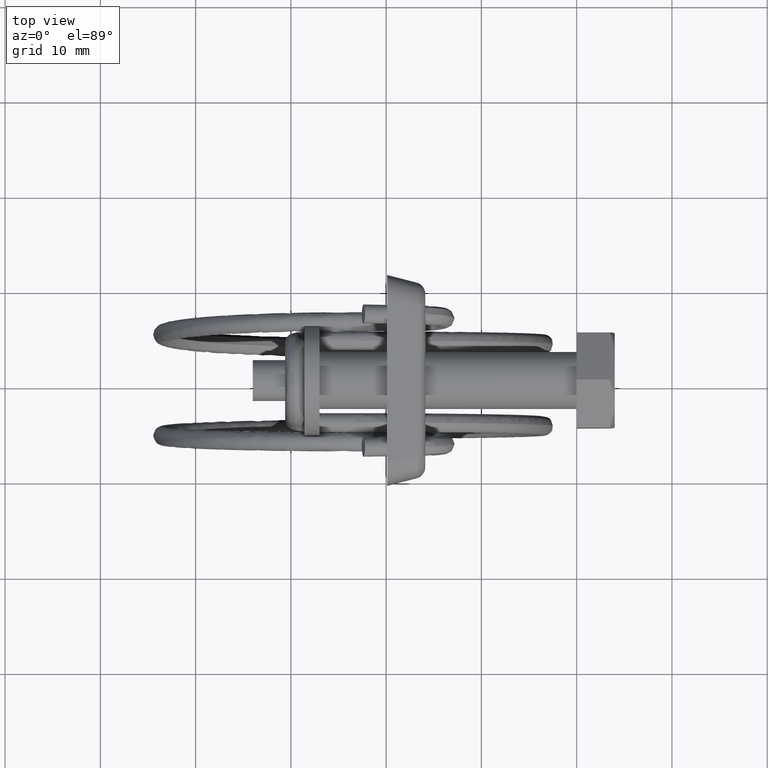
[diagram: clean part render]
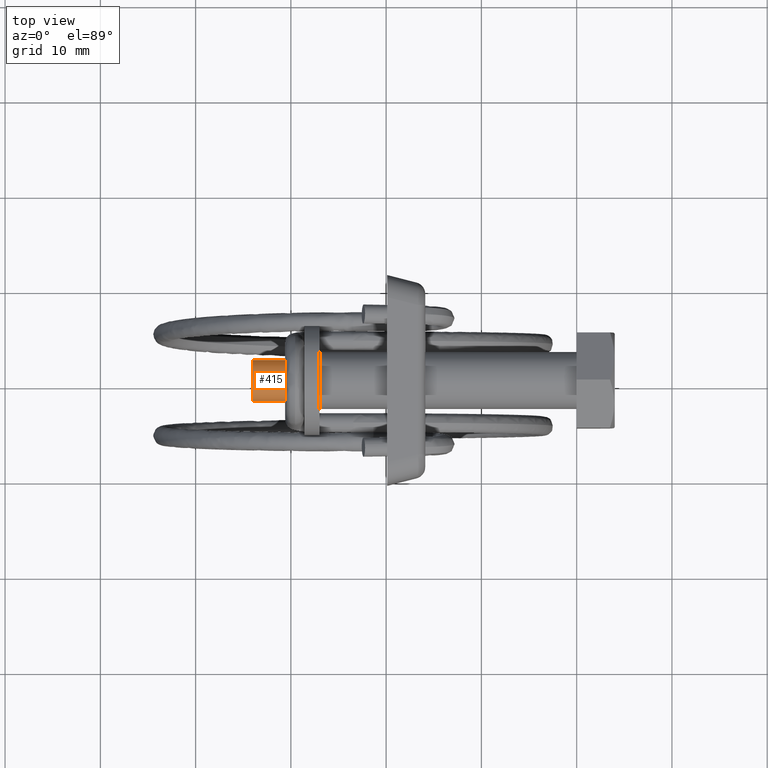
[diagram: same view with one face highlighted and labeled with its STEP entity id]
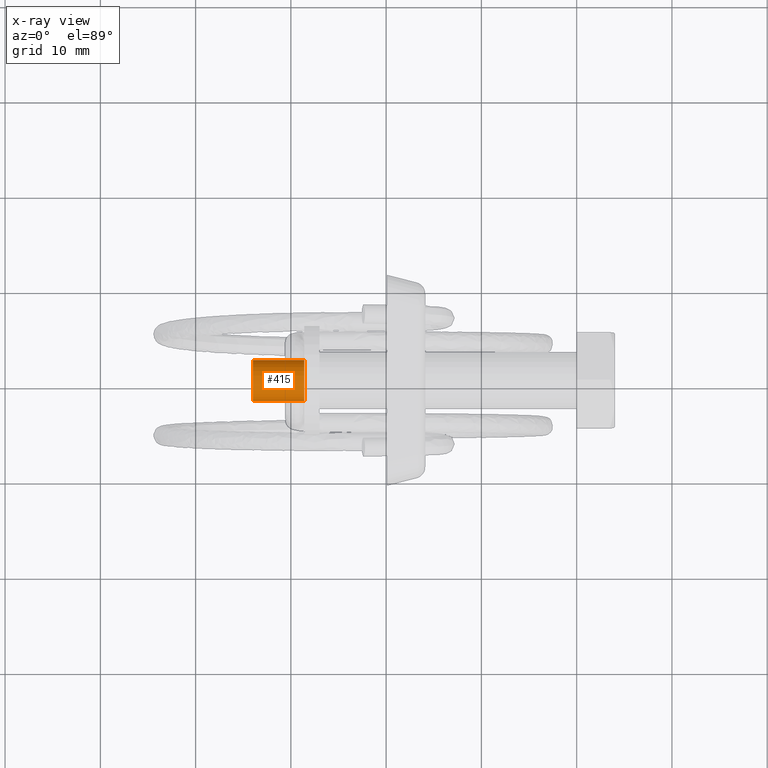
[diagram: x-ray of the same camera — body ghosted, the highlighted face saturated]
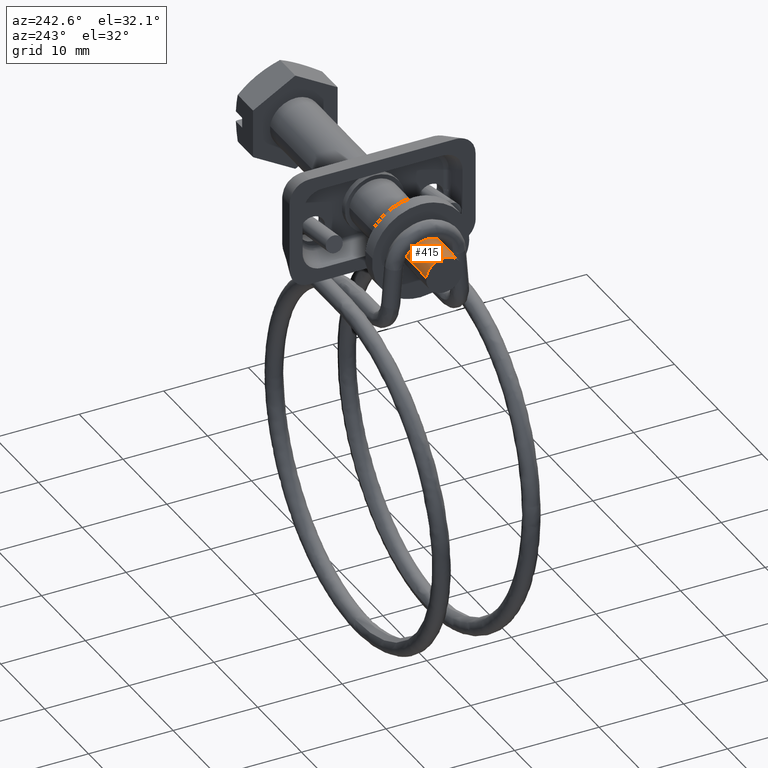
[diagram: same view with one face highlighted and labeled with its STEP entity id]
A machine part, top view. The second image highlights one B-rep face of the part: STEP entity #415.
The next image is the same camera in x-ray: the body ghosted, the highlighted face saturated — about 0% of this face is hidden behind the body in this view.
A second angle (auxiliary view) of the same face is appended — the face is thin or edge-on in the first view.
In plain terms, the highlighted face is a freeform B-spline surface patch.
Its self-contained STEP definition (entity closure, byte-faithful):
#252=CARTESIAN_POINT('',(-28.600000000000001,2.134970481668138,0.253773604627667));
#253=VERTEX_POINT('',#252);
#271=CARTESIAN_POINT('',(-28.600000000000001,-2.145989816599399,-0.131254360124442));
#272=VERTEX_POINT('',#271);
#286=CARTESIAN_POINT('',(-34.0,-2.145989816599399,-0.131254360124442));
#287=VERTEX_POINT('',#286);
#288=CARTESIAN_POINT('',(-28.600000000000001,-2.145989816599399,-0.131254360124442));
#289=CARTESIAN_POINT('',(-34.0,-2.145989816599399,-0.131254360124442));
#290=QUASI_UNIFORM_CURVE('',1,(#288,#289),.UNSPECIFIED.,.F.,.U.);
#291=EDGE_CURVE('',#272,#287,#290,.T.);
#308=CARTESIAN_POINT('',(-34.0,2.134970481668138,0.253773604627667));
#309=VERTEX_POINT('',#308);
#325=CARTESIAN_POINT('',(-28.600000000000001,2.134970481668138,0.253773604627667));
#326=CARTESIAN_POINT('',(-34.0,2.134970481668138,0.253773604627667));
#327=QUASI_UNIFORM_CURVE('',1,(#325,#326),.UNSPECIFIED.,.F.,.U.);
#328=EDGE_CURVE('',#253,#309,#327,.T.);
#333=CARTESIAN_POINT('',(-28.465000000000000,-2.145989816607014,-0.131254359999943));
#334=CARTESIAN_POINT('',(-28.465000000000003,-2.277244176606957,2.014735456607071));
#335=CARTESIAN_POINT('',(-28.465000000000000,-0.131254359999943,2.145989816607014));
#336=CARTESIAN_POINT('',(-28.464999999999996,1.895318505304927,2.269940322974934));
#337=CARTESIAN_POINT('',(-28.465000000000007,2.134970481681882,0.253773604512031));
#338=CARTESIAN_POINT('',(-34.138375000000011,-2.145989816607014,-0.131254359999943));
#339=CARTESIAN_POINT('',(-34.138375000000003,-2.277244176606957,2.014735456607071));
#340=CARTESIAN_POINT('',(-34.138375000000011,-0.131254359999943,2.145989816607014));
#341=CARTESIAN_POINT('',(-34.138375000000003,1.895318505304927,2.269940322974934));
#342=CARTESIAN_POINT('',(-34.138375000000011,2.134970481681882,0.253773604512031));
#350=(BOUNDED_SURFACE()B_SPLINE_SURFACE(2,1,((#333,#338),(#334,#339),(#335,#340),(#336,#341),(#337,#342)),.UNSPECIFIED.,.F.,.F.,.U.)B_SPLINE_SURFACE_WITH_KNOTS((3,2,3),(2,2),(0.0,3.562236636408617,6.981983807360889),(0.0,5.673375000000017),.UNSPECIFIED.)GEOMETRIC_REPRESENTATION_ITEM()RATIONAL_B_SPLINE_SURFACE(((1.0,1.0),(0.707106781186548,0.707106781186548),(1.0,1.0),(0.718822509939086,0.718822509939086),(0.977505800795127,0.977505800795127)))REPRESENTATION_ITEM('')SURFACE());
#351=CARTESIAN_POINT('',(-28.600000000000001,0.0,2.150000000000000));
#352=VERTEX_POINT('',#351);
#353=CARTESIAN_POINT('',(-28.600000000000001,0.0,2.150000000000000));
#354=CARTESIAN_POINT('',(-28.600000000000016,1.909575230587128,2.150000000000000));
#355=CARTESIAN_POINT('',(-28.600000000000001,2.134970481668138,0.253773604627667));
#363=(BOUNDED_CURVE()B_SPLINE_CURVE(2,(#353,#354,#355),.UNSPECIFIED.,.F.,.U.)B_SPLINE_CURVE_WITH_KNOTS((3,3),(0.0,0.229562473497337),.UNSPECIFIED.)CURVE()GEOMETRIC_REPRESENTATION_ITEM()RATIONAL_B_SPLINE_CURVE((1.0,0.731050832874349,0.956026754152002))REPRESENTATION_ITEM(''));
#364=EDGE_CURVE('',#352,#253,#363,.T.);
#365=ORIENTED_EDGE('',*,*,#364,.T.);
#366=ORIENTED_EDGE('',*,*,#328,.T.);
#367=CARTESIAN_POINT('',(-34.0,0.0,2.150000000000000));
#368=VERTEX_POINT('',#367);
#369=CARTESIAN_POINT('',(-34.0,0.0,2.150000000000000));
#370=CARTESIAN_POINT('',(-33.999999999999993,1.909575230587128,2.150000000000000));
#371=CARTESIAN_POINT('',(-33.999999999999993,2.134970481668138,0.253773604627667));
#379=(BOUNDED_CURVE()B_SPLINE_CURVE(2,(#369,#370,#371),.UNSPECIFIED.,.F.,.U.)B_SPLINE_CURVE_WITH_KNOTS((3,3),(0.0,0.229562473497337),.UNSPECIFIED.)CURVE()GEOMETRIC_REPRESENTATION_ITEM()RATIONAL_B_SPLINE_CURVE((1.0,0.731050832874349,0.956026754152002))REPRESENTATION_ITEM(''));
#380=EDGE_CURVE('',#368,#309,#379,.T.);
#381=ORIENTED_EDGE('',*,*,#380,.F.);
#382=CARTESIAN_POINT('',(-34.0,-2.145989816599399,-0.131254360124442));
#383=CARTESIAN_POINT('',(-34.0,-2.150000000000000,-0.065688441216814));
#384=CARTESIAN_POINT('',(-34.0,-2.150000000000000,0.0));
#385=CARTESIAN_POINT('',(-34.000000000000014,-2.150000000000000,2.150000000000000));
#386=CARTESIAN_POINT('',(-34.0,0.0,2.150000000000000));
#394=(BOUNDED_CURVE()B_SPLINE_CURVE(2,(#382,#383,#384,#385,#386),.UNSPECIFIED.,.F.,.U.)B_SPLINE_CURVE_WITH_KNOTS((3,2,3),(0.739332962221948,0.750000000000000,1.0),.UNSPECIFIED.)CURVE()GEOMETRIC_REPRESENTATION_ITEM()RATIONAL_B_SPLINE_CURVE((0.976072041630294,0.987502787879926,1.0,0.707106781186547,1.0))REPRESENTATION_ITEM(''));
#395=EDGE_CURVE('',#287,#368,#394,.T.);
#396=ORIENTED_EDGE('',*,*,#395,.F.);
#397=ORIENTED_EDGE('',*,*,#291,.F.);
#398=CARTESIAN_POINT('',(-28.600000000000005,-2.145989816599399,-0.131254360124442));
#399=CARTESIAN_POINT('',(-28.600000000000009,-2.150000000000000,-0.065688441216814));
#400=CARTESIAN_POINT('',(-28.600000000000001,-2.150000000000000,0.0));
#401=CARTESIAN_POINT('',(-28.600000000000001,-2.150000000000000,2.150000000000000));
#402=CARTESIAN_POINT('',(-28.600000000000001,0.0,2.150000000000000));
#410=(BOUNDED_CURVE()B_SPLINE_CURVE(2,(#398,#399,#400,#401,#402),.UNSPECIFIED.,.F.,.U.)B_SPLINE_CURVE_WITH_KNOTS((3,2,3),(0.739332962221948,0.750000000000000,1.0),.UNSPECIFIED.)CURVE()GEOMETRIC_REPRESENTATION_ITEM()RATIONAL_B_SPLINE_CURVE((0.976072041630294,0.987502787879926,1.0,0.707106781186547,1.0))REPRESENTATION_ITEM(''));
#411=EDGE_CURVE('',#272,#352,#410,.T.);
#412=ORIENTED_EDGE('',*,*,#411,.T.);
#413=EDGE_LOOP('',(#365,#366,#381,#396,#397,#412));
#414=FACE_OUTER_BOUND('',#413,.T.);
#415=ADVANCED_FACE('',(#414),#350,.T.);